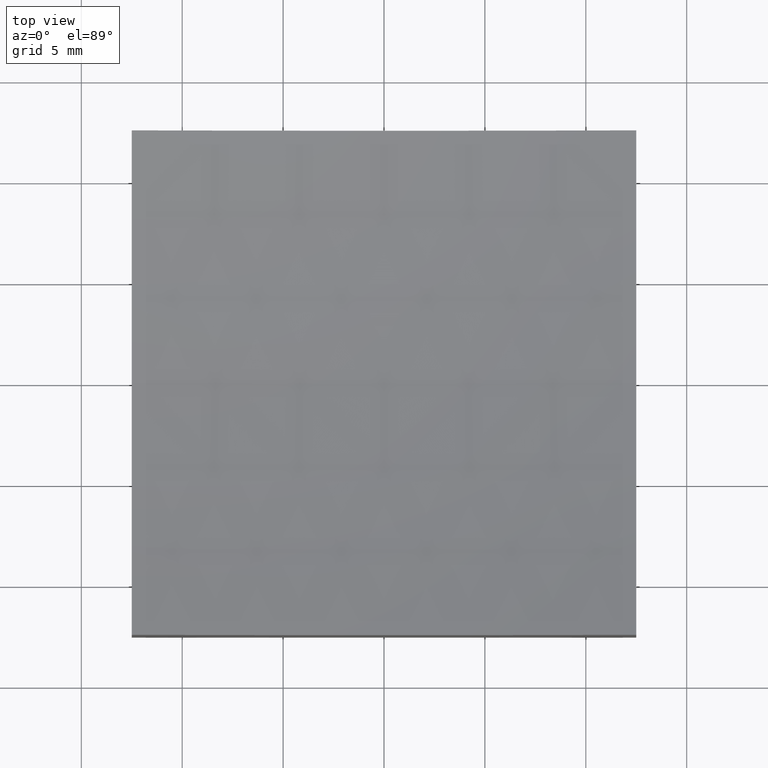
[diagram: clean part render]
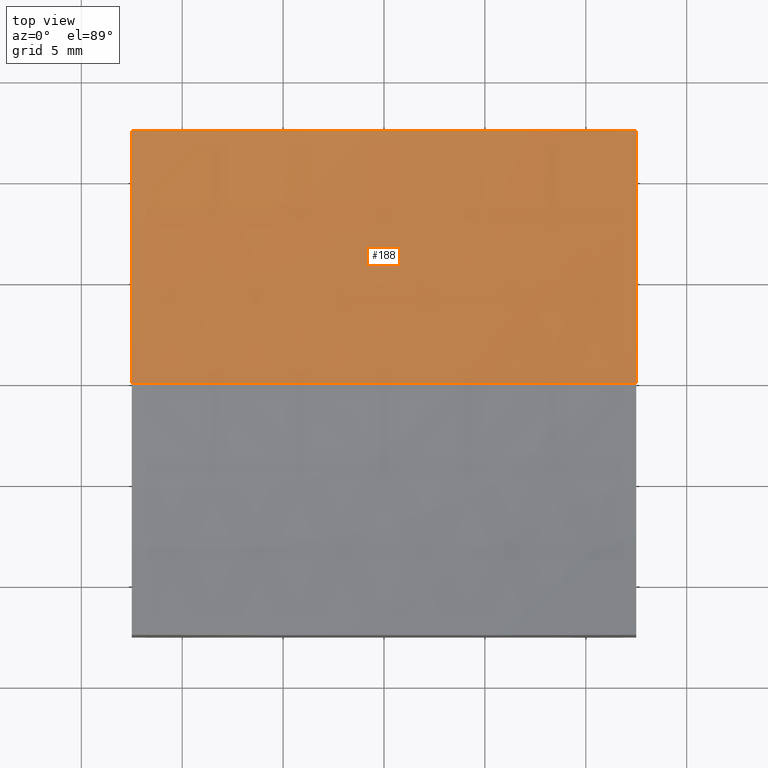
[diagram: same view with one face highlighted and labeled with its STEP entity id]
A machine part, top view. The second image highlights one B-rep face of the part: STEP entity #188.
In plain terms, the highlighted spherical surface has radius 80 mm.
Its self-contained STEP definition (entity closure, byte-faithful):
#6 = EDGE_CURVE ( 'NONE', #189, #131, #78, .T. ) ;
#7 = CARTESIAN_POINT ( 'NONE',  ( -12.49999999999999822, -1.734723475976808278E-15, 86.00000000000000000 ) ) ;
#9 = AXIS2_PLACEMENT_3D ( 'NONE', #143, #224, #222 ) ;
#11 = SPHERICAL_SURFACE ( 'NONE', #173, 80.00000000000001421 ) ;
#13 = AXIS2_PLACEMENT_3D ( 'NONE', #113, #102, #17 ) ;
#17 = DIRECTION ( 'NONE',  ( 0.0000000000000000000, 0.0000000000000000000, -1.000000000000000000 ) ) ;
#31 = CARTESIAN_POINT ( 'NONE',  ( 1.053196247266724167E-14, 0.0000000000000000000, 86.00000000000000000 ) ) ;
#38 = EDGE_CURVE ( 'NONE', #249, #189, #205, .T. ) ;
#46 = CARTESIAN_POINT ( 'NONE',  ( 12.50000000000000178, 0.0000000000000000000, 6.982596853604452036 ) ) ;
#54 = ORIENTED_EDGE ( 'NONE', *, *, #6, .T. ) ;
#57 = EDGE_LOOP ( 'NONE', ( #156, #174, #54, #209, #112 ) ) ;
#58 = CARTESIAN_POINT ( 'NONE',  ( 12.50000000000000000, 12.50000000000000000, 7.977567328363813104 ) ) ;
#65 = DIRECTION ( 'NONE',  ( 1.000000000000000000, 0.0000000000000000000, -1.734723475976806848E-16 ) ) ;
#73 = EDGE_CURVE ( 'NONE', #249, #114, #150, .T. ) ;
#78 = CIRCLE ( 'NONE', #123, 79.01740314639556573 ) ;
#79 = CARTESIAN_POINT ( 'NONE',  ( 1.053196247266724167E-14, 0.0000000000000000000, 86.00000000000000000 ) ) ;
#87 = CARTESIAN_POINT ( 'NONE',  ( 3.458540119970568356E-15, 0.0000000000000000000, 5.999999999999991118 ) ) ;
#97 = DIRECTION ( 'NONE',  ( -1.317221326114363248E-16, 1.000000000000000000, 0.0000000000000000000 ) ) ;
#102 = DIRECTION ( 'NONE',  ( 0.0000000000000000000, -1.000000000000000000, -0.0000000000000000000 ) ) ;
#107 = FACE_OUTER_BOUND ( 'NONE', #57, .T. ) ;
#110 = VERTEX_POINT ( 'NONE', #119 ) ;
#112 = ORIENTED_EDGE ( 'NONE', *, *, #142, .F. ) ;
#113 = CARTESIAN_POINT ( 'NONE',  ( 1.053196247266724167E-14, 0.0000000000000000000, 86.00000000000000000 ) ) ;
#114 = VERTEX_POINT ( 'NONE', #161 ) ;
#116 = CIRCLE ( 'NONE', #9, 79.01740314639556573 ) ;
#119 = CARTESIAN_POINT ( 'NONE',  ( -12.50000000000000000, 12.50000000000000000, 7.977567328363813104 ) ) ;
#123 = AXIS2_PLACEMENT_3D ( 'NONE', #217, #251, #97 ) ;
#131 = VERTEX_POINT ( 'NONE', #58 ) ;
#136 = DIRECTION ( 'NONE',  ( 1.000000000000000000, 1.387778780781445676E-16, -0.0000000000000000000 ) ) ;
#142 = EDGE_CURVE ( 'NONE', #114, #110, #145, .T. ) ;
#143 = CARTESIAN_POINT ( 'NONE',  ( 1.053196247266724167E-14, 12.50000000000000000, 86.00000000000000000 ) ) ;
#145 = CIRCLE ( 'NONE', #181, 79.01740314639556573 ) ;
#150 = CIRCLE ( 'NONE', #220, 80.00000000000001421 ) ;
#156 = ORIENTED_EDGE ( 'NONE', *, *, #73, .F. ) ;
#161 = CARTESIAN_POINT ( 'NONE',  ( -12.49999999999999645, 1.530808498934191127E-15, 6.982596853604452036 ) ) ;
#173 = AXIS2_PLACEMENT_3D ( 'NONE', #31, #223, #65 ) ;
#174 = ORIENTED_EDGE ( 'NONE', *, *, #38, .T. ) ;
#177 = DIRECTION ( 'NONE',  ( -1.000000000000000000, 1.224646799147353207E-16, 0.0000000000000000000 ) ) ;
#181 = AXIS2_PLACEMENT_3D ( 'NONE', #7, #136, #210 ) ;
#188 = ADVANCED_FACE ( 'NONE', ( #107 ), #11, .F. ) ;
#189 = VERTEX_POINT ( 'NONE', #46 ) ;
#190 = DIRECTION ( 'NONE',  ( 1.224646799147353207E-16, 1.000000000000000000, -1.832685396736843925E-32 ) ) ;
#205 = CIRCLE ( 'NONE', #13, 80.00000000000001421 ) ;
#209 = ORIENTED_EDGE ( 'NONE', *, *, #219, .T. ) ;
#210 = DIRECTION ( 'NONE',  ( -1.317221326114363248E-16, 1.000000000000000000, 0.0000000000000000000 ) ) ;
#217 = CARTESIAN_POINT ( 'NONE',  ( 12.50000000000000178, 1.734723475976805911E-15, 86.00000000000000000 ) ) ;
#219 = EDGE_CURVE ( 'NONE', #131, #110, #116, .T. ) ;
#220 = AXIS2_PLACEMENT_3D ( 'NONE', #79, #190, #177 ) ;
#222 = DIRECTION ( 'NONE',  ( 0.0000000000000000000, 0.0000000000000000000, 1.000000000000000000 ) ) ;
#223 = DIRECTION ( 'NONE',  ( 0.0000000000000000000, 1.000000000000000000, 0.0000000000000000000 ) ) ;
#224 = DIRECTION ( 'NONE',  ( 0.0000000000000000000, 1.000000000000000000, 0.0000000000000000000 ) ) ;
#249 = VERTEX_POINT ( 'NONE', #87 ) ;
#251 = DIRECTION ( 'NONE',  ( 1.000000000000000000, 1.387778780781445676E-16, -0.0000000000000000000 ) ) ;